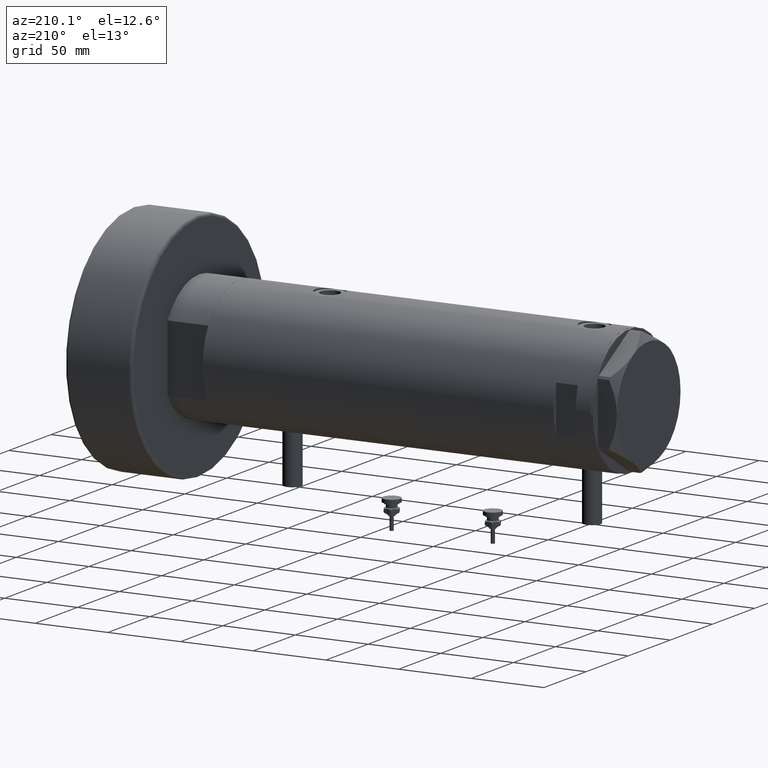
[diagram: clean part render]
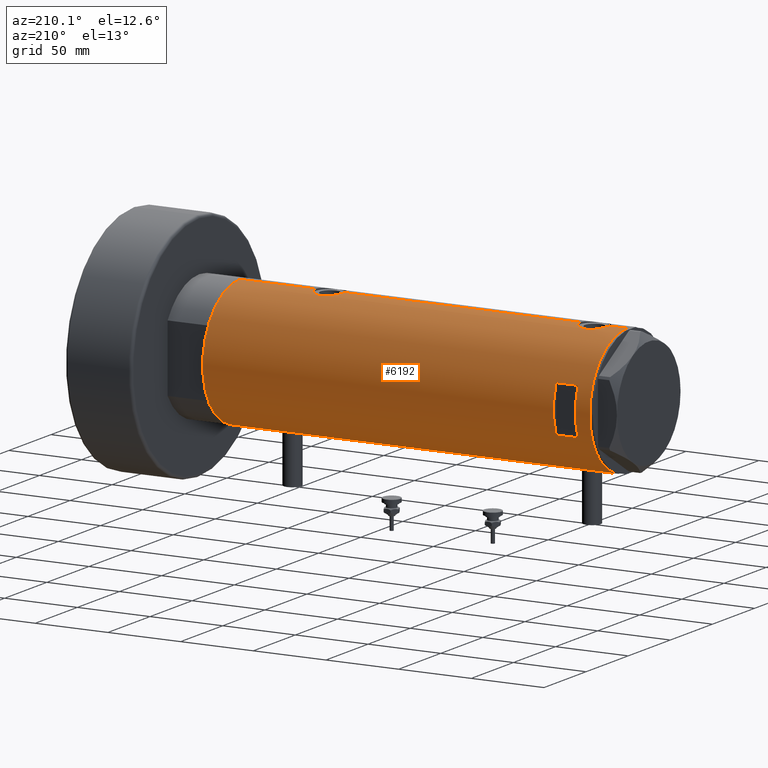
[diagram: same view with one face highlighted and labeled with its STEP entity id]
A machine part, auxiliary view. The second image highlights one B-rep face of the part: STEP entity #6192.
In plain terms, the highlighted cylindrical surface (partial cylindrical patch) has radius 44 mm, axis along (-1, -0, 0).
Its self-contained STEP definition (entity closure, byte-faithful):
#11 = ORIENTED_EDGE ( 'NONE', *, *, #2934, .F. ) ;
#34 = DIRECTION ( 'NONE',  ( 1.000000000000000000, -8.881784197001252323E-16, 0.000000000000000000 ) ) ;
#45 = CARTESIAN_POINT ( 'NONE',  ( -15.96871942267132027, 40.99999999999999289, -133.1999999999999886 ) ) ;
#64 = CARTESIAN_POINT ( 'NONE',  ( 43.94229162222111285, 2.275476993733910547, 101.1568553577768768 ) ) ;
#65 = CYLINDRICAL_SURFACE ( 'NONE', #1260, 44.00000000000000000 ) ;
#121 = CARTESIAN_POINT ( 'NONE',  ( 43.71454618729809738, 5.012329428678969911, -62.44063025941689915 ) ) ;
#141 = CARTESIAN_POINT ( 'NONE',  ( -43.64133398152736021, 5.607447751852152606, -99.66786045012435125 ) ) ;
#152 = CARTESIAN_POINT ( 'NONE',  ( 43.88561577393362256, 3.228056721358715020, -61.61278334272176949 ) ) ;
#163 = CARTESIAN_POINT ( 'NONE',  ( 43.07641822757289418, 8.969229373860565957, 115.3339623579017257 ) ) ;
#164 = CARTESIAN_POINT ( 'NONE',  ( -44.00000000000000000, 5.388445916248353619E-15, 133.1999999999999886 ) ) ;
#169 = CARTESIAN_POINT ( 'NONE',  ( -43.92459115390705193, 2.581892149020998950, -102.5954582707334168 ) ) ;
#181 = CARTESIAN_POINT ( 'NONE',  ( 43.50265731352002518, 6.601850423195592121, -78.61819167298952493 ) ) ;
#186 = EDGE_CURVE ( 'NONE', #1609, #5030, #3092, .T. ) ;
#199 = CARTESIAN_POINT ( 'NONE',  ( 43.77712723341632994, 4.432620652875498557, 119.8699500975997125 ) ) ;
#217 = LINE ( 'NONE', #5529, #291 ) ;
#219 = CARTESIAN_POINT ( 'NONE',  ( 43.35257020184193522, 7.523219862841653338, -64.50397445915864125 ) ) ;
#254 = CARTESIAN_POINT ( 'NONE',  ( 42.92624534982631701, 9.661626915142807803, -73.70008004144708025 ) ) ;
#266 = CARTESIAN_POINT ( 'NONE',  ( 43.04663170950395568, 9.110642017076083121, 106.7645249780960484 ) ) ;
#282 = CARTESIAN_POINT ( 'NONE',  ( -43.97068415157983878, 1.617901284326946909, 115.2404512830004251 ) ) ;
#291 = VECTOR ( 'NONE', #5989, 1000.000000000000000 ) ;
#314 = CARTESIAN_POINT ( 'NONE',  ( -43.97181775256600389, 1.624866278047415680, 103.1510708161490300 ) ) ;
#346 = DIRECTION ( 'NONE',  ( -0.000000000000000000, -0.000000000000000000, -1.000000000000000000 ) ) ;
#402 = ORIENTED_EDGE ( 'NONE', *, *, #4376, .T. ) ;
#407 = CIRCLE ( 'NONE', #5133, 44.00000000000000000 ) ;
#472 = CARTESIAN_POINT ( 'NONE',  ( -43.97068415157983878, 1.617901284326946909, -90.85954871699952662 ) ) ;
#481 = CARTESIAN_POINT ( 'NONE',  ( 0.000000000000000000, 0.000000000000000000, 108.1999999999999602 ) ) ;
#527 = CARTESIAN_POINT ( 'NONE',  ( -43.64122538274737195, 5.608286354294323317, -94.13388613036657659 ) ) ;
#558 = CARTESIAN_POINT ( 'NONE',  ( 44.00000000000002132, 0.6630566900259825536, 100.9000000000000199 ) ) ;
#564 = CARTESIAN_POINT ( 'NONE',  ( -43.99413512814552263, 0.8228129877960659311, -103.1090831432581894 ) ) ;
#601 = DIRECTION ( 'NONE',  ( 1.000000000000000000, 0.000000000000000000, 0.000000000000000000 ) ) ;
#629 = CARTESIAN_POINT ( 'NONE',  ( -43.55963022497231663, 6.210088036293396563, -96.08353836982574592 ) ) ;
#640 = CARTESIAN_POINT ( 'NONE',  ( 43.85884410404901246, 3.534688330930384925, -80.46019808750332913 ) ) ;
#663 = CARTESIAN_POINT ( 'NONE',  ( -43.71901936021023971, 4.969830049220626655, -100.7116763769886916 ) ) ;
#675 = CARTESIAN_POINT ( 'NONE',  ( 43.17306590853068116, 8.492365194390515626, -65.80987467306543692 ) ) ;
#685 = CARTESIAN_POINT ( 'NONE',  ( 42.92259096922160211, 9.678247830257127760, 113.5000599302879607 ) ) ;
#731 = CARTESIAN_POINT ( 'NONE',  ( 42.84850876528982866, 10.00026482975808051, -70.44941694529578058 ) ) ;
#748 = CARTESIAN_POINT ( 'NONE',  ( 44.00000000000000711, 0.3269372501759374994, 120.8999999999999488 ) ) ;
#764 = CARTESIAN_POINT ( 'NONE',  ( -43.64122538274737195, 5.608286354294323317, 111.9661138696334035 ) ) ;
#769 = CARTESIAN_POINT ( 'NONE',  ( 44.00000000000000000, 0.000000000000000000, -133.1999999999999886 ) ) ;
#795 = B_SPLINE_CURVE_WITH_KNOTS ( 'NONE', 3,
 ( #3108, #5660, #2112, #2663, #5118, #5148, #640, #4667, #4630, #4108, #3632, #181, #1632, #5564, #6055, #5531, #2604, #4568, #4042, #1214, #5632, #254, #5089, #5601, #1149, #731, #1185, #3141, #2693, #6026, #2212, #3691, #675, #1247, #6156, #219, #4169, #2178, #4141, #2567, #121, #6131, #2084, #152, #2632, #1601, #1703, #4597, #3566, #4329 ),
 .UNSPECIFIED., .F., .F.,
 ( 4, 2, 2, 2, 2, 2, 2, 2, 2, 2, 2, 2, 2, 2, 2, 2, 2, 2, 2, 2, 2, 2, 2, 2, 4 ),
 ( 3.045219632368639583E-18, 0.001960456513248893216, 0.002940684769873342860, 0.003920913026497792504, 0.005881369539746674445, 0.006861597796371113681, 0.007841826052995553784, 0.009802282566244465215, 0.01078251082286891746, 0.01176273907949336971, 0.01274296733611782195, 0.01372319559274227246, 0.01568365210599113879, 0.01764410861924000512, 0.01960456513248887145, 0.02058479338911330114, 0.02156502164573773431, 0.02254524990236216400, 0.02352547815898659370, 0.02548593467223548084, 0.02646616292885992441, 0.02744639118548436452, 0.02940684769873325166, 0.03038707595535769523, 0.03136730421198213187 ),
 .UNSPECIFIED. ) ;
#804 = VECTOR ( 'NONE', #2755, 1000.000000000000000 ) ;
#807 = CARTESIAN_POINT ( 'NONE',  ( 44.00000000000000000, -3.917155089190972685E-21, -61.10000000000000142 ) ) ;
#827 = ORIENTED_EDGE ( 'NONE', *, *, #4677, .F. ) ;
#860 = CARTESIAN_POINT ( 'NONE',  ( 0.000000000000000000, 0.000000000000000000, -133.1999999999999886 ) ) ;
#864 = CARTESIAN_POINT ( 'NONE',  ( -44.00000000000000000, 5.388445781982983516E-15, 102.9499999999999886 ) ) ;
#891 = CARTESIAN_POINT ( 'NONE',  ( -44.00000000000000711, 0.4135148353567996149, 115.4500000000000028 ) ) ;
#924 = CIRCLE ( 'NONE', #5142, 44.00000000000000000 ) ;
#957 = CARTESIAN_POINT ( 'NONE',  ( -44.00000000000000000, 4.742435893011557518E-16, -90.64999999999997726 ) ) ;
#979 = EDGE_CURVE ( 'NONE', #5030, #4381, #3270, .T. ) ;
#985 = CARTESIAN_POINT ( 'NONE',  ( -43.83593455218809254, 3.811409182021277431, -91.92985072296495730 ) ) ;
#986 = CARTESIAN_POINT ( 'NONE',  ( -44.00000000000000000, 4.742435893011557518E-16, 115.4500000000000028 ) ) ;
#993 = VERTEX_POINT ( 'NONE', #3723 ) ;
#1076 = CARTESIAN_POINT ( 'NONE',  ( -43.83576802966640429, 3.813209221108459168, -101.8686549035471103 ) ) ;
#1100 = CARTESIAN_POINT ( 'NONE',  ( 42.99303682946563043, 9.360292926890506848, 107.3657577979279694 ) ) ;
#1105 = CARTESIAN_POINT ( 'NONE',  ( -43.74833112883977293, 4.708208586952001617, -92.76949616491124573 ) ) ;
#1131 = CARTESIAN_POINT ( 'NONE',  ( 43.88297407487991109, 3.222431612395379119, 101.4277179797065713 ) ) ;
#1149 = CARTESIAN_POINT ( 'NONE',  ( 42.84863276153907208, 9.999733523508362865, -71.75869904750778971 ) ) ;
#1175 = ORIENTED_EDGE ( 'NONE', *, *, #979, .F. ) ;
#1185 = CARTESIAN_POINT ( 'NONE',  ( 42.86396777580259965, 9.934664719553401468, -69.78423800973480695 ) ) ;
#1194 = CARTESIAN_POINT ( 'NONE',  ( 42.92624534982631701, 9.661626915142809580, 108.2999199585528913 ) ) ;
#1214 = CARTESIAN_POINT ( 'NONE',  ( 42.99303682946561622, 9.360292926890506848, -74.63424220207204485 ) ) ;
#1228 = CARTESIAN_POINT ( 'NONE',  ( 43.88561577393361546, 3.228056721358708359, 120.3872166572782163 ) ) ;
#1247 = CARTESIAN_POINT ( 'NONE',  ( 43.24261242176995523, 8.130827601038829400, -65.26944813145829016 ) ) ;
#1250 = EDGE_CURVE ( 'NONE', #1583, #6385, #217, .T. ) ;
#1260 = AXIS2_PLACEMENT_3D ( 'NONE', #5485, #2991, #3955 ) ;
#1303 = CARTESIAN_POINT ( 'NONE',  ( -43.64133398152736021, 5.607447751852152606, 106.4321395498756715 ) ) ;
#1363 = VECTOR ( 'NONE', #2010, 1000.000000000000000 ) ;
#1373 = CARTESIAN_POINT ( 'NONE',  ( -44.00000000000000000, 5.388445916248353619E-15, -133.1999999999999886 ) ) ;
#1376 = CARTESIAN_POINT ( 'NONE',  ( -43.88883895882799635, 3.130924084324101297, 103.7868754425185358 ) ) ;
#1378 = VERTEX_POINT ( 'NONE', #6129 ) ;
#1402 = CARTESIAN_POINT ( 'NONE',  ( -43.66575107734168171, 5.414026674167576658, 106.0706491196230132 ) ) ;
#1446 = AXIS2_PLACEMENT_3D ( 'NONE', #4002, #5560, #601 ) ;
#1465 = CARTESIAN_POINT ( 'NONE',  ( -43.91413175532567692, 2.773555030353453965, -91.28415761633256409 ) ) ;
#1494 = CARTESIAN_POINT ( 'NONE',  ( -43.66575107734168171, 5.414026674167576658, -100.0293508803769669 ) ) ;
#1583 = VERTEX_POINT ( 'NONE', #986 ) ;
#1590 = CARTESIAN_POINT ( 'NONE',  ( -43.58362292239462477, 6.039157555656595733, -95.27736421551958301 ) ) ;
#1601 = CARTESIAN_POINT ( 'NONE',  ( 43.97062489912107708, 1.639461988184798935, -61.22985373334012849 ) ) ;
#1609 = VERTEX_POINT ( 'NONE', #2132 ) ;
#1613 = CARTESIAN_POINT ( 'NONE',  ( 43.27871541412905287, 7.937063204555986573, 116.9917499724602976 ) ) ;
#1619 = CARTESIAN_POINT ( 'NONE',  ( -43.99999999999997158, 0.4081702738789203533, -103.1499999999999488 ) ) ;
#1632 = CARTESIAN_POINT ( 'NONE',  ( 43.46520118248735542, 6.843279251446916511, -78.39898327212164020 ) ) ;
#1648 = CARTESIAN_POINT ( 'NONE',  ( 43.85884410404901246, 3.534688330930384925, 101.5398019124966567 ) ) ;
#1703 = CARTESIAN_POINT ( 'NONE',  ( 43.98169492814103165, 1.310824514239770533, -61.18080219619314875 ) ) ;
#1712 = CARTESIAN_POINT ( 'NONE',  ( 43.27822890220284791, 7.945655169171516263, 104.7927461671070688 ) ) ;
#1758 = CARTESIAN_POINT ( 'NONE',  ( -43.95549163632549750, 2.014511215452027937, 103.2694104429502033 ) ) ;
#1790 = CARTESIAN_POINT ( 'NONE',  ( 15.96871942267132027, 40.99999999999999289, 123.1999999999999744 ) ) ;
#1794 = CARTESIAN_POINT ( 'NONE',  ( -43.92459115390705193, 2.581892149020998950, 103.5045417292665206 ) ) ;
#1799 = VERTEX_POINT ( 'NONE', #807 ) ;
#1823 = CARTESIAN_POINT ( 'NONE',  ( -43.71901936021023971, 4.969830049220626655, 105.3883236230112317 ) ) ;
#1894 = CARTESIAN_POINT ( 'NONE',  ( -43.55386785759471024, 6.249847571481740971, 109.6105494761795285 ) ) ;
#1945 = CARTESIAN_POINT ( 'NONE',  ( -44.00000000000000711, 0.4135148353567996149, -90.64999999999996305 ) ) ;
#1980 = ORIENTED_EDGE ( 'NONE', *, *, #2660, .F. ) ;
#1988 = ORIENTED_EDGE ( 'NONE', *, *, #4411, .F. ) ;
#2005 = ORIENTED_EDGE ( 'NONE', *, *, #3599, .F. ) ;
#2006 = CARTESIAN_POINT ( 'NONE',  ( -43.59867737633045692, 5.931302618788633296, -98.91249495029886418 ) ) ;
#2010 = DIRECTION ( 'NONE',  ( 0.000000000000000000, 0.000000000000000000, 1.000000000000000000 ) ) ;
#2028 = CARTESIAN_POINT ( 'NONE',  ( 43.92466059386729427, 2.593004216484783964, 101.2364333032864323 ) ) ;
#2038 = CARTESIAN_POINT ( 'NONE',  ( -44.00000000000000000, 4.742435893011557518E-16, -90.64999999999997726 ) ) ;
#2065 = VECTOR ( 'NONE', #2252, 1000.000000000000000 ) ;
#2084 = CARTESIAN_POINT ( 'NONE',  ( 43.80640706382535399, 4.134078575915395071, -61.98867178437915015 ) ) ;
#2103 = CARTESIAN_POINT ( 'NONE',  ( -43.80687348212602217, 4.128385987736833407, -101.6104874331096113 ) ) ;
#2112 = CARTESIAN_POINT ( 'NONE',  ( 43.98503110884232115, 1.314607393679875225, -81.03470984345550221 ) ) ;
#2124 = CARTESIAN_POINT ( 'NONE',  ( 43.13897484505560698, 8.663345277311673698, 105.8947039993948920 ) ) ;
#2131 = CARTESIAN_POINT ( 'NONE',  ( -44.00000000000000000, 5.388445781982983516E-15, -103.1499999999999915 ) ) ;
#2132 = CARTESIAN_POINT ( 'NONE',  ( 44.00000000000000000, -2.552687571866728611E-15, 100.8999999999999915 ) ) ;
#2160 = CARTESIAN_POINT ( 'NONE',  ( 43.92756755766649235, 2.604528169608113064, 120.5771341190234125 ) ) ;
#2178 = CARTESIAN_POINT ( 'NONE',  ( 43.50382207688846137, 6.605942769308308371, -63.56395311161777784 ) ) ;
#2196 = CARTESIAN_POINT ( 'NONE',  ( 43.57805684119164624, 6.103282219787165452, 118.8481620164785824 ) ) ;
#2212 = CARTESIAN_POINT ( 'NONE',  ( 43.07641822757290129, 8.969229373860576615, -66.66603764209827432 ) ) ;
#2213 = VERTEX_POINT ( 'NONE', #5057 ) ;
#2220 = CARTESIAN_POINT ( 'NONE',  ( 44.00000000000000000, -3.917104602093038540E-21, 120.8999999999999773 ) ) ;
#2236 = CARTESIAN_POINT ( 'NONE',  ( -43.88968326835893663, 3.132363423941621150, 114.6237923235648140 ) ) ;
#2252 = DIRECTION ( 'NONE',  ( 0.000000000000000000, 0.000000000000000000, 1.000000000000000000 ) ) ;
#2271 = CARTESIAN_POINT ( 'NONE',  ( -43.74805001749254529, 4.711035428619386956, 105.0722393587420243 ) ) ;
#2308 = CARTESIAN_POINT ( 'NONE',  ( -43.97754480947185129, 1.419697478855583617, 115.2900327605206883 ) ) ;
#2331 = ORIENTED_EDGE ( 'NONE', *, *, #2509, .F. ) ;
#2370 = CARTESIAN_POINT ( 'NONE',  ( -43.91413175532567692, 2.773555030353453965, 114.8158423836674302 ) ) ;
#2382 = EDGE_CURVE ( 'NONE', #1799, #1609, #3787, .T. ) ;
#2399 = DIRECTION ( 'NONE',  ( 0.000000000000000000, 0.000000000000000000, 1.000000000000000000 ) ) ;
#2436 = DIRECTION ( 'NONE',  ( -0.000000000000000000, -0.000000000000000000, 1.000000000000000000 ) ) ;
#2509 = EDGE_CURVE ( 'NONE', #6047, #6038, #407, .T. ) ;
#2516 = CARTESIAN_POINT ( 'NONE',  ( 43.98503110884232115, 1.314607393679875669, 100.9652901565444836 ) ) ;
#2550 = CARTESIAN_POINT ( 'NONE',  ( -44.00000000000000000, 5.388445781982983516E-15, -103.1499999999999915 ) ) ;
#2562 = VECTOR ( 'NONE', #2758, 1000.000000000000000 ) ;
#2567 = CARTESIAN_POINT ( 'NONE',  ( 43.68141895191831736, 5.292250119194735980, -62.60895047714807049 ) ) ;
#2583 = CARTESIAN_POINT ( 'NONE',  ( 43.39051256276903246, 7.301963662770311281, 117.7402446821294149 ) ) ;
#2593 = CARTESIAN_POINT ( 'NONE',  ( -43.62981559643959883, 5.696090409300652802, -99.48051365414524128 ) ) ;
#2604 = CARTESIAN_POINT ( 'NONE',  ( 43.13897484505559987, 8.663345277311663040, -76.10529600060515065 ) ) ;
#2609 = ORIENTED_EDGE ( 'NONE', *, *, #3078, .T. ) ;
#2617 = CARTESIAN_POINT ( 'NONE',  ( 43.57657781376909156, 6.094873943596678778, 102.9652569888040290 ) ) ;
#2621 = CARTESIAN_POINT ( 'NONE',  ( -43.59995593514495482, 5.920088975424566691, -94.88582091308217059 ) ) ;
#2627 = EDGE_CURVE ( 'NONE', #2846, #1799, #795, .T. ) ;
#2632 = CARTESIAN_POINT ( 'NONE',  ( 43.92756755766649235, 2.604528169608121946, -61.42286588097655908 ) ) ;
#2644 = CARTESIAN_POINT ( 'NONE',  ( 42.96547725528407824, 9.488625330801083280, 114.1245034721107316 ) ) ;
#2660 = EDGE_CURVE ( 'NONE', #1583, #4887, #6117, .T. ) ;
#2663 = CARTESIAN_POINT ( 'NONE',  ( 43.94229162222111285, 2.275476993733910991, -80.84314464222306640 ) ) ;
#2693 = CARTESIAN_POINT ( 'NONE',  ( 42.96547725528408535, 9.488625330801083280, -67.87549652788928256 ) ) ;
#2723 = CARTESIAN_POINT ( 'NONE',  ( -43.83576802966640429, 3.813209221108459168, 104.2313450964528840 ) ) ;
#2750 = CARTESIAN_POINT ( 'NONE',  ( -43.62981559643959883, 5.696090409300652802, 106.6194863458547530 ) ) ;
#2755 = DIRECTION ( 'NONE',  ( 0.000000000000000000, 0.000000000000000000, 1.000000000000000000 ) ) ;
#2758 = DIRECTION ( 'NONE',  ( 0.000000000000000000, 0.000000000000000000, 1.000000000000000000 ) ) ;
#2775 = CIRCLE ( 'NONE', #3600, 44.00000000000000000 ) ;
#2778 = CARTESIAN_POINT ( 'NONE',  ( 15.96871942267132027, 40.99999999999999289, 108.1999999999999744 ) ) ;
#2790 = CARTESIAN_POINT ( 'NONE',  ( -43.66555354895124452, 5.415612800338318600, 112.3265635717755799 ) ) ;
#2793 = VERTEX_POINT ( 'NONE', #2038 ) ;
#2795 = CARTESIAN_POINT ( 'NONE',  ( 44.00000000000000000, 0.000000000000000000, -133.1999999999999886 ) ) ;
#2821 = CARTESIAN_POINT ( 'NONE',  ( -43.91315028150560096, 2.769134003554746482, 103.5931738062459431 ) ) ;
#2846 = VERTEX_POINT ( 'NONE', #3232 ) ;
#2848 = CARTESIAN_POINT ( 'NONE',  ( -43.83593455218809254, 3.811409182021277431, 114.1701492770349944 ) ) ;
#2909 = CARTESIAN_POINT ( 'NONE',  ( -43.99417607942194763, 0.8200150578638748522, -90.69063327483260650 ) ) ;
#2932 = CARTESIAN_POINT ( 'NONE',  ( 15.96871942267132027, 40.99999999999999289, -133.1999999999999886 ) ) ;
#2934 = EDGE_CURVE ( 'NONE', #4323, #6047, #4793, .T. ) ;
#2991 = DIRECTION ( 'NONE',  ( 0.000000000000000000, 0.000000000000000000, 1.000000000000000000 ) ) ;
#3031 = CARTESIAN_POINT ( 'NONE',  ( -43.58221825186232223, 6.049526113783018744, -98.52262970817956500 ) ) ;
#3057 = CARTESIAN_POINT ( 'NONE',  ( 43.35294442506074120, 7.532526048221051873, 104.2906458550888971 ) ) ;
#3063 = CARTESIAN_POINT ( 'NONE',  ( -43.55382423478827292, 6.250151562062086441, -97.30589529487338041 ) ) ;
#3078 = EDGE_CURVE ( 'NONE', #2213, #1378, #924, .T. ) ;
#3090 = CARTESIAN_POINT ( 'NONE',  ( 43.35257020184194232, 7.523219862841656891, 117.4960255408413161 ) ) ;
#3092 = B_SPLINE_CURVE_WITH_KNOTS ( 'NONE', 3,
 ( #5392, #558, #2516, #64, #2028, #1131, #1648, #4178, #3579, #4610, #2617, #5613, #3703, #3057, #1712, #3147, #2124, #6167, #266, #1100, #3670, #1194, #3644, #5642, #5545, #3182, #5127, #685, #2644, #5101, #163, #4087, #4579, #4055, #1613, #3090, #2583, #6142, #2196, #6075, #6039, #199, #3611, #1228, #2160, #4124, #5161, #4546, #748, #2220 ),
 .UNSPECIFIED., .F., .F.,
 ( 4, 2, 2, 2, 2, 2, 2, 2, 2, 2, 2, 2, 2, 2, 2, 2, 2, 2, 2, 2, 2, 2, 2, 2, 4 ),
 ( 2.479523669370822448E-18, 0.001960456513248879339, 0.002940684769873313370, 0.003920913026497747401, 0.005881369539746631077, 0.006861597796371071180, 0.007841826052995510415, 0.009802282566244392356, 0.01078251082286883072, 0.01176273907949326909, 0.01274296733611770746, 0.01372319559274214583, 0.01568365210599106593, 0.01764410861923998430, 0.01960456513248890267, 0.02058479338911334278, 0.02156502164573777941, 0.02254524990236221951, 0.02352547815898665615, 0.02548593467223552941, 0.02646616292885996952, 0.02744639118548440615, 0.02940684769873327942, 0.03038707595535771258, 0.03136730421198213881 ),
 .UNSPECIFIED. ) ;
#3098 = CARTESIAN_POINT ( 'NONE',  ( -43.61859254253774054, 5.782454868881351295, -94.50213599105534001 ) ) ;
#3108 = CARTESIAN_POINT ( 'NONE',  ( 44.00000000000000000, -3.135075661981687665E-15, -81.09999999999999432 ) ) ;
#3141 = CARTESIAN_POINT ( 'NONE',  ( 42.92259096922160921, 9.678247830257129536, -68.49994006971208194 ) ) ;
#3147 = CARTESIAN_POINT ( 'NONE',  ( 43.17277162440354488, 8.493905080221262338, 105.6121296489150438 ) ) ;
#3149 = LINE ( 'NONE', #5615, #2065 ) ;
#3182 = CARTESIAN_POINT ( 'NONE',  ( 42.84850876528983576, 10.00026482975808229, 111.5505830547042621 ) ) ;
#3228 = VERTEX_POINT ( 'NONE', #2550 ) ;
#3232 = CARTESIAN_POINT ( 'NONE',  ( 44.00000000000000000, -3.135075661981687665E-15, -81.09999999999999432 ) ) ;
#3237 = CARTESIAN_POINT ( 'NONE',  ( -43.94507179847653333, 2.206027755801677870, 115.0513152228179052 ) ) ;
#3266 = CARTESIAN_POINT ( 'NONE',  ( -43.99999999999997158, 0.4081702738789203533, 102.9499999999999460 ) ) ;
#3270 = LINE ( 'NONE', #769, #804 ) ;
#3297 = EDGE_CURVE ( 'NONE', #2793, #4887, #5709, .T. ) ;
#3336 = CARTESIAN_POINT ( 'NONE',  ( 44.00000000000000000, 0.000000000000000000, 133.1999999999999886 ) ) ;
#3421 = DIRECTION ( 'NONE',  ( -0.000000000000000000, -0.000000000000000000, -1.000000000000000000 ) ) ;
#3447 = CARTESIAN_POINT ( 'NONE',  ( 0.000000000000000000, 0.000000000000000000, 123.1999999999999744 ) ) ;
#3455 = CARTESIAN_POINT ( 'NONE',  ( -43.97181775256600389, 1.624866278047415680, -102.9489291838509359 ) ) ;
#3487 = VECTOR ( 'NONE', #346, 1000.000000000000000 ) ;
#3556 = CARTESIAN_POINT ( 'NONE',  ( -43.55973179376100290, 6.209370339246232717, -97.72061767059869908 ) ) ;
#3566 = CARTESIAN_POINT ( 'NONE',  ( 44.00000000000000000, 0.3269372501759409411, -61.10000000000001563 ) ) ;
#3574 = CARTESIAN_POINT ( 'NONE',  ( 44.00000000000000000, -3.917104602093038540E-21, 120.8999999999999773 ) ) ;
#3579 = CARTESIAN_POINT ( 'NONE',  ( 43.71659050864931828, 5.015880325000608764, 102.2243317403618050 ) ) ;
#3599 = EDGE_CURVE ( 'NONE', #993, #4323, #2775, .T. ) ;
#3600 = AXIS2_PLACEMENT_3D ( 'NONE', #3447, #3421, #34 ) ;
#3611 = CARTESIAN_POINT ( 'NONE',  ( 43.80640706382536109, 4.134078575915387965, 120.0113282156208925 ) ) ;
#3619 = ORIENTED_EDGE ( 'NONE', *, *, #5696, .F. ) ;
#3632 = CARTESIAN_POINT ( 'NONE',  ( 43.57657781376909156, 6.094873943596678778, -79.03474301119597101 ) ) ;
#3644 = CARTESIAN_POINT ( 'NONE',  ( 42.90786968859021044, 9.742642423712171151, 108.6219770345287685 ) ) ;
#3670 = CARTESIAN_POINT ( 'NONE',  ( 42.96879251999280314, 9.470609476412112926, 107.6727710005894210 ) ) ;
#3691 = CARTESIAN_POINT ( 'NONE',  ( 43.13962074468734187, 8.660138848900679420, -66.08910258836066021 ) ) ;
#3703 = CARTESIAN_POINT ( 'NONE',  ( 43.46520118248735542, 6.843279251446916511, 103.6010167278783172 ) ) ;
#3719 = CARTESIAN_POINT ( 'NONE',  ( -43.55973179376100290, 6.209370339246232717, 108.3793823294012668 ) ) ;
#3723 = CARTESIAN_POINT ( 'NONE',  ( -15.96871942267132027, 40.99999999999999289, 123.1999999999999744 ) ) ;
#3749 = CARTESIAN_POINT ( 'NONE',  ( -43.59995593514495482, 5.920088975424566691, 111.2141790869178237 ) ) ;
#3787 = LINE ( 'NONE', #2795, #2562 ) ;
#3837 = EDGE_LOOP ( 'NONE', ( #2609, #402, #1988, #5008, #1980, #4672, #4765, #1175, #4910, #4461, #4743, #827 ) ) ;
#3845 = CARTESIAN_POINT ( 'NONE',  ( -43.58221825186232223, 6.049526113783018744, 107.5773702918203583 ) ) ;
#3868 = DIRECTION ( 'NONE',  ( 0.000000000000000000, 0.000000000000000000, 1.000000000000000000 ) ) ;
#3896 = CARTESIAN_POINT ( 'NONE',  ( -43.95446647384543581, 2.010857111636599637, -90.97875773636060615 ) ) ;
#3926 = FACE_BOUND ( 'NONE', #5915, .T. ) ;
#3955 = DIRECTION ( 'NONE',  ( 1.000000000000000000, 0.000000000000000000, 0.000000000000000000 ) ) ;
#3982 = EDGE_CURVE ( 'NONE', #4381, #6385, #6305, .T. ) ;
#3994 = CARTESIAN_POINT ( 'NONE',  ( -43.67867890111967455, 5.309046579850785541, -100.2042277907602141 ) ) ;
#4002 = CARTESIAN_POINT ( 'NONE',  ( 0.000000000000000000, 0.000000000000000000, 133.1999999999999886 ) ) ;
#4042 = CARTESIAN_POINT ( 'NONE',  ( 43.04663170950396278, 9.110642017076083121, -75.23547502190392322 ) ) ;
#4055 = CARTESIAN_POINT ( 'NONE',  ( 43.24261242176996234, 8.130827601038829400, 116.7305518685416814 ) ) ;
#4060 = CARTESIAN_POINT ( 'NONE',  ( -43.74805001749254529, 4.711035428619386956, -101.0277606412579843 ) ) ;
#4087 = CARTESIAN_POINT ( 'NONE',  ( 43.13962074468734897, 8.660138848900670538, 115.9108974116393256 ) ) ;
#4108 = CARTESIAN_POINT ( 'NONE',  ( 43.61291203895920887, 5.829986172017926016, -79.23128710786828321 ) ) ;
#4124 = CARTESIAN_POINT ( 'NONE',  ( 43.97062489912108418, 1.639461988184795604, 120.7701462666598360 ) ) ;
#4141 = CARTESIAN_POINT ( 'NONE',  ( 43.57805684119164624, 6.103282219787164564, -63.15183798352140343 ) ) ;
#4169 = CARTESIAN_POINT ( 'NONE',  ( 43.39051256276902535, 7.301963662770313057, -64.25975531787057093 ) ) ;
#4178 = CARTESIAN_POINT ( 'NONE',  ( 43.77939001959705223, 4.442287752090382291, 101.9169382244083977 ) ) ;
#4199 = CARTESIAN_POINT ( 'NONE',  ( -43.67863969133946966, 5.309394106110037370, 112.5037929650254540 ) ) ;
#4218 = DIRECTION ( 'NONE',  ( 0.000000000000000000, 0.000000000000000000, 1.000000000000000000 ) ) ;
#4232 = CARTESIAN_POINT ( 'NONE',  ( -43.99413512814552263, 0.8228129877960659311, 102.9909168567417623 ) ) ;
#4266 = CARTESIAN_POINT ( 'NONE',  ( -43.71938389712227746, 4.966728892888062852, 113.0161445234086841 ) ) ;
#4294 = CARTESIAN_POINT ( 'NONE',  ( -43.95446647384543581, 2.010857111636599637, 115.1212422636393597 ) ) ;
#4323 = VERTEX_POINT ( 'NONE', #1790 ) ;
#4329 = CARTESIAN_POINT ( 'NONE',  ( 44.00000000000000000, -3.917155089190972685E-21, -61.10000000000000142 ) ) ;
#4376 = EDGE_CURVE ( 'NONE', #1378, #3228, #6354, .T. ) ;
#4381 = VERTEX_POINT ( 'NONE', #3336 ) ;
#4384 = CARTESIAN_POINT ( 'NONE',  ( -43.94507179847653333, 2.206027755801677870, -91.04868477718203224 ) ) ;
#4397 = DIRECTION ( 'NONE',  ( -1.000000000000000000, -8.881784197001252323E-16, 0.000000000000000000 ) ) ;
#4411 = EDGE_CURVE ( 'NONE', #2793, #3228, #4783, .T. ) ;
#4461 = ORIENTED_EDGE ( 'NONE', *, *, #2382, .F. ) ;
#4522 = VECTOR ( 'NONE', #4218, 1000.000000000000000 ) ;
#4546 = CARTESIAN_POINT ( 'NONE',  ( 43.99635668041008074, 0.6544833911834539997, 120.8840070847752912 ) ) ;
#4556 = CARTESIAN_POINT ( 'NONE',  ( -43.55386785759471024, 6.249847571481740971, -96.48945052382043741 ) ) ;
#4568 = CARTESIAN_POINT ( 'NONE',  ( 43.07598348983507464, 8.971306953823004804, -75.52969423187190046 ) ) ;
#4579 = CARTESIAN_POINT ( 'NONE',  ( 43.17306590853067405, 8.492365194390513849, 116.1901253269345489 ) ) ;
#4588 = CARTESIAN_POINT ( 'NONE',  ( -43.91315028150560096, 2.769134003554746482, -102.5068261937540370 ) ) ;
#4597 = CARTESIAN_POINT ( 'NONE',  ( 43.99635668041005943, 0.6544833911834577744, -61.11599291522468747 ) ) ;
#4610 = CARTESIAN_POINT ( 'NONE',  ( 43.61291203895921598, 5.829986172017926016, 102.7687128921316884 ) ) ;
#4630 = CARTESIAN_POINT ( 'NONE',  ( 43.71659050864932539, 5.015880325000608764, -79.77566825963823760 ) ) ;
#4667 = CARTESIAN_POINT ( 'NONE',  ( 43.77939001959705934, 4.442287752090383179, -80.08306177559163075 ) ) ;
#4672 = ORIENTED_EDGE ( 'NONE', *, *, #1250, .T. ) ;
#4677 = EDGE_CURVE ( 'NONE', #2213, #2846, #3149, .T. ) ;
#4697 = CARTESIAN_POINT ( 'NONE',  ( -43.87596296923810968, 3.305851531861728976, 103.8919641412373807 ) ) ;
#4730 = CARTESIAN_POINT ( 'NONE',  ( -43.67867890111967455, 5.309046579850785541, 105.8957722092397518 ) ) ;
#4743 = ORIENTED_EDGE ( 'NONE', *, *, #2627, .F. ) ;
#4765 = ORIENTED_EDGE ( 'NONE', *, *, #3982, .F. ) ;
#4783 = B_SPLINE_CURVE_WITH_KNOTS ( 'NONE', 3,
 ( #957, #1945, #2909, #4888, #472, #3896, #4384, #1465, #5397, #985, #4979, #1105, #6045, #5079, #5456, #527, #3098, #2621, #1590, #5978, #629, #4556, #3063, #3556, #3031, #2006, #2593, #141, #1494, #3994, #663, #4060, #2103, #1076, #5006, #5491, #4588, #169, #5042, #3455, #564, #1619, #2131 ),
 .UNSPECIFIED., .F., .F.,
 ( 4, 2, 2, 2, 2, 2, 2, 2, 1, 2, 2, 2, 2, 2, 2, 2, 2, 2, 2, 2, 2, 4 ),
 ( 4.607873388256435088E-19, 0.001222818171749670340, 0.001834227257624505619, 0.002445636343499341114, 0.003668454515249027284, 0.004891272686998713454, 0.006114090858748398756, 0.006725499944623259188, 0.007336909030498119620, 0.007948318116372978318, 0.008559727202247837882, 0.009782545373997518848, 0.01100536354574719981, 0.01222818171749687904, 0.01283959080337173861, 0.01345099988924659644, 0.01467381806099631383, 0.01589663623274603296, 0.01650804531862088906, 0.01711945440449574862, 0.01834227257624546428, 0.01956509074799517994 ),
 .UNSPECIFIED. ) ;
#4793 = LINE ( 'NONE', #2932, #3487 ) ;
#4828 = CARTESIAN_POINT ( 'NONE',  ( -43.59867737633045692, 5.931302618788633296, 107.1875050497011301 ) ) ;
#4876 = CARTESIAN_POINT ( 'NONE',  ( -44.00000000000000000, 5.388445781982983516E-15, 102.9499999999999886 ) ) ;
#4887 = VERTEX_POINT ( 'NONE', #4876 ) ;
#4888 = CARTESIAN_POINT ( 'NONE',  ( -43.97754480947185129, 1.419697478855583617, -90.80996723947920657 ) ) ;
#4910 = ORIENTED_EDGE ( 'NONE', *, *, #186, .F. ) ;
#4979 = CARTESIAN_POINT ( 'NONE',  ( -43.80646232387288563, 4.132500855894024383, -92.19354414596644176 ) ) ;
#5006 = CARTESIAN_POINT ( 'NONE',  ( -43.87596296923810968, 3.305851531861728976, -102.2080358587625852 ) ) ;
#5008 = ORIENTED_EDGE ( 'NONE', *, *, #3297, .T. ) ;
#5030 = VERTEX_POINT ( 'NONE', #3574 ) ;
#5042 = CARTESIAN_POINT ( 'NONE',  ( -43.95549163632549750, 2.014511215452027937, -102.8305895570497626 ) ) ;
#5057 = CARTESIAN_POINT ( 'NONE',  ( 44.00000000000000000, 0.000000000000000000, -133.1999999999999886 ) ) ;
#5079 = CARTESIAN_POINT ( 'NONE',  ( -43.67863969133946966, 5.309394106110037370, -93.59620703497449767 ) ) ;
#5089 = CARTESIAN_POINT ( 'NONE',  ( 42.90786968859021044, 9.742642423712167599, -73.37802296547127412 ) ) ;
#5101 = CARTESIAN_POINT ( 'NONE',  ( 43.04652664061922707, 9.111152824375430725, 115.0345800921458874 ) ) ;
#5118 = CARTESIAN_POINT ( 'NONE',  ( 43.92466059386730137, 2.593004216484783964, -80.76356669671353927 ) ) ;
#5127 = CARTESIAN_POINT ( 'NONE',  ( 42.86396777580258544, 9.934664719553397916, 112.2157619902652073 ) ) ;
#5133 = AXIS2_PLACEMENT_3D ( 'NONE', #481, #2436, #4397 ) ;
#5142 = AXIS2_PLACEMENT_3D ( 'NONE', #860, #2399, #6282 ) ;
#5148 = CARTESIAN_POINT ( 'NONE',  ( 43.88297407487990398, 3.222431612395380007, -80.57228202029341446 ) ) ;
#5160 = VECTOR ( 'NONE', #3868, 1000.000000000000000 ) ;
#5161 = CARTESIAN_POINT ( 'NONE',  ( 43.98169492814103165, 1.310824514239766536, 120.8191978038068299 ) ) ;
#5206 = CARTESIAN_POINT ( 'NONE',  ( -43.74833112883977293, 4.708208586952001617, 113.3305038350888196 ) ) ;
#5237 = CARTESIAN_POINT ( 'NONE',  ( -43.61859254253774054, 5.782454868881351295, 111.5978640089446401 ) ) ;
#5270 = CARTESIAN_POINT ( 'NONE',  ( -43.80687348212602217, 4.128385987736833407, 104.4895125668903404 ) ) ;
#5301 = CARTESIAN_POINT ( 'NONE',  ( -43.55382423478827292, 6.250151562062086441, 108.7941047051266281 ) ) ;
#5392 = CARTESIAN_POINT ( 'NONE',  ( 44.00000000000000000, -2.552687571866728611E-15, 100.8999999999999915 ) ) ;
#5397 = CARTESIAN_POINT ( 'NONE',  ( -43.88968326835893663, 3.132363423941621150, -91.47620767643519457 ) ) ;
#5453 = FACE_OUTER_BOUND ( 'NONE', #3837, .T. ) ;
#5456 = CARTESIAN_POINT ( 'NONE',  ( -43.66555354895124452, 5.415612800338318600, -93.77343642822444281 ) ) ;
#5485 = CARTESIAN_POINT ( 'NONE',  ( 0.000000000000000000, 0.000000000000000000, -133.1999999999999886 ) ) ;
#5491 = CARTESIAN_POINT ( 'NONE',  ( -43.88883895882799635, 3.130924084324101297, -102.3131245574814443 ) ) ;
#5529 = CARTESIAN_POINT ( 'NONE',  ( -44.00000000000000000, 5.388445916248353619E-15, -133.1999999999999886 ) ) ;
#5531 = CARTESIAN_POINT ( 'NONE',  ( 43.17277162440354488, 8.493905080221260562, -76.38787035108494194 ) ) ;
#5545 = CARTESIAN_POINT ( 'NONE',  ( 42.84863276153905787, 9.999733523508361088, 110.2413009524922103 ) ) ;
#5560 = DIRECTION ( 'NONE',  ( 0.000000000000000000, 0.000000000000000000, 1.000000000000000000 ) ) ;
#5564 = CARTESIAN_POINT ( 'NONE',  ( 43.35294442506074830, 7.532526048221050097, -77.70935414491110294 ) ) ;
#5601 = CARTESIAN_POINT ( 'NONE',  ( 42.86370458161099606, 9.935807968041567406, -72.40904550429866049 ) ) ;
#5613 = CARTESIAN_POINT ( 'NONE',  ( 43.50265731352001808, 6.601850423195591233, 103.3818083270104466 ) ) ;
#5615 = CARTESIAN_POINT ( 'NONE',  ( 44.00000000000000000, 0.000000000000000000, -133.1999999999999886 ) ) ;
#5632 = CARTESIAN_POINT ( 'NONE',  ( 42.96879251999280314, 9.470609476412112926, -74.32722899941056482 ) ) ;
#5642 = CARTESIAN_POINT ( 'NONE',  ( 42.86370458161099606, 9.935807968041567406, 109.5909544957013395 ) ) ;
#5660 = CARTESIAN_POINT ( 'NONE',  ( 44.00000000000001421, 0.6630566900259822205, -81.10000000000002274 ) ) ;
#5693 = CARTESIAN_POINT ( 'NONE',  ( -44.00000000000000000, 4.742435893011557518E-16, 115.4500000000000028 ) ) ;
#5696 = EDGE_CURVE ( 'NONE', #6038, #993, #5983, .T. ) ;
#5709 = LINE ( 'NONE', #6211, #4522 ) ;
#5720 = CARTESIAN_POINT ( 'NONE',  ( -43.55963022497231663, 6.210088036293396563, 110.0164616301742200 ) ) ;
#5825 = CARTESIAN_POINT ( 'NONE',  ( -43.57657963456318839, 6.089610171536606664, 110.6217853958080894 ) ) ;
#5844 = CARTESIAN_POINT ( 'NONE',  ( -15.96871942267132027, 40.99999999999999289, 108.1999999999999744 ) ) ;
#5915 = EDGE_LOOP ( 'NONE', ( #2331, #11, #2005, #3619 ) ) ;
#5978 = CARTESIAN_POINT ( 'NONE',  ( -43.57657963456318839, 6.089610171536606664, -95.47821460419186224 ) ) ;
#5983 = LINE ( 'NONE', #45, #1363 ) ;
#5989 = DIRECTION ( 'NONE',  ( 0.000000000000000000, 0.000000000000000000, 1.000000000000000000 ) ) ;
#6026 = CARTESIAN_POINT ( 'NONE',  ( 43.04652664061920575, 9.111152824375427173, -66.96541990785412679 ) ) ;
#6038 = VERTEX_POINT ( 'NONE', #5844 ) ;
#6039 = CARTESIAN_POINT ( 'NONE',  ( 43.71454618729810448, 5.012329428678959253, 119.5593697405831364 ) ) ;
#6045 = CARTESIAN_POINT ( 'NONE',  ( -43.71938389712227746, 4.966728892888062852, -93.08385547659128179 ) ) ;
#6047 = VERTEX_POINT ( 'NONE', #2778 ) ;
#6055 = CARTESIAN_POINT ( 'NONE',  ( 43.27822890220284791, 7.945655169171514487, -77.20725383289291699 ) ) ;
#6075 = CARTESIAN_POINT ( 'NONE',  ( 43.68141895191831736, 5.292250119194734204, 119.3910495228519437 ) ) ;
#6117 = B_SPLINE_CURVE_WITH_KNOTS ( 'NONE', 3,
 ( #5693, #891, #6188, #2308, #282, #4294, #3237, #2370, #2236, #2848, #6325, #5206, #4266, #4199, #2790, #764, #5237, #3749, #6254, #5825, #5720, #1894, #5301, #3719, #3845, #4828, #2750, #1303, #1402, #4730, #1823, #2271, #5270, #2723, #4697, #1376, #2821, #1794, #1758, #314, #4232, #3266, #864 ),
 .UNSPECIFIED., .F., .F.,
 ( 4, 2, 2, 2, 2, 2, 2, 2, 1, 2, 2, 2, 2, 2, 2, 2, 2, 2, 2, 2, 2, 4 ),
 ( 4.607873388256435088E-19, 0.001222818171749670340, 0.001834227257624505619, 0.002445636343499341114, 0.003668454515249027284, 0.004891272686998713454, 0.006114090858748398756, 0.006725499944623259188, 0.007336909030498119620, 0.007948318116372978318, 0.008559727202247837882, 0.009782545373997518848, 0.01100536354574719981, 0.01222818171749687904, 0.01283959080337173861, 0.01345099988924659644, 0.01467381806099631383, 0.01589663623274603296, 0.01650804531862088906, 0.01711945440449574862, 0.01834227257624546428, 0.01956509074799517994 ),
 .UNSPECIFIED. ) ;
#6129 = CARTESIAN_POINT ( 'NONE',  ( -44.00000000000000000, 5.388445916248353619E-15, -133.1999999999999886 ) ) ;
#6131 = CARTESIAN_POINT ( 'NONE',  ( 43.77712723341632284, 4.432620652875510103, -62.13004990240030878 ) ) ;
#6142 = CARTESIAN_POINT ( 'NONE',  ( 43.50382207688846847, 6.605942769308303930, 118.4360468883821937 ) ) ;
#6156 = CARTESIAN_POINT ( 'NONE',  ( 43.27871541412905998, 7.937063204555987461, -65.00825002753970239 ) ) ;
#6167 = CARTESIAN_POINT ( 'NONE',  ( 43.07598348983507464, 8.971306953823011909, 106.4703057681281280 ) ) ;
#6188 = CARTESIAN_POINT ( 'NONE',  ( -43.99417607942194763, 0.8200150578638748522, 115.4093667251674020 ) ) ;
#6192 = ADVANCED_FACE ( 'NONE', ( #3926, #5453 ), #65, .T. ) ;
#6211 = CARTESIAN_POINT ( 'NONE',  ( -44.00000000000000000, 5.388445916248353619E-15, -133.1999999999999886 ) ) ;
#6254 = CARTESIAN_POINT ( 'NONE',  ( -43.58362292239462477, 6.039157555656595733, 110.8226357844803402 ) ) ;
#6282 = DIRECTION ( 'NONE',  ( 1.000000000000000000, 0.000000000000000000, 0.000000000000000000 ) ) ;
#6305 = CIRCLE ( 'NONE', #1446, 44.00000000000000000 ) ;
#6325 = CARTESIAN_POINT ( 'NONE',  ( -43.80646232387288563, 4.132500855894024383, 113.9064558540335526 ) ) ;
#6354 = LINE ( 'NONE', #1373, #5160 ) ;
#6385 = VERTEX_POINT ( 'NONE', #164 ) ;